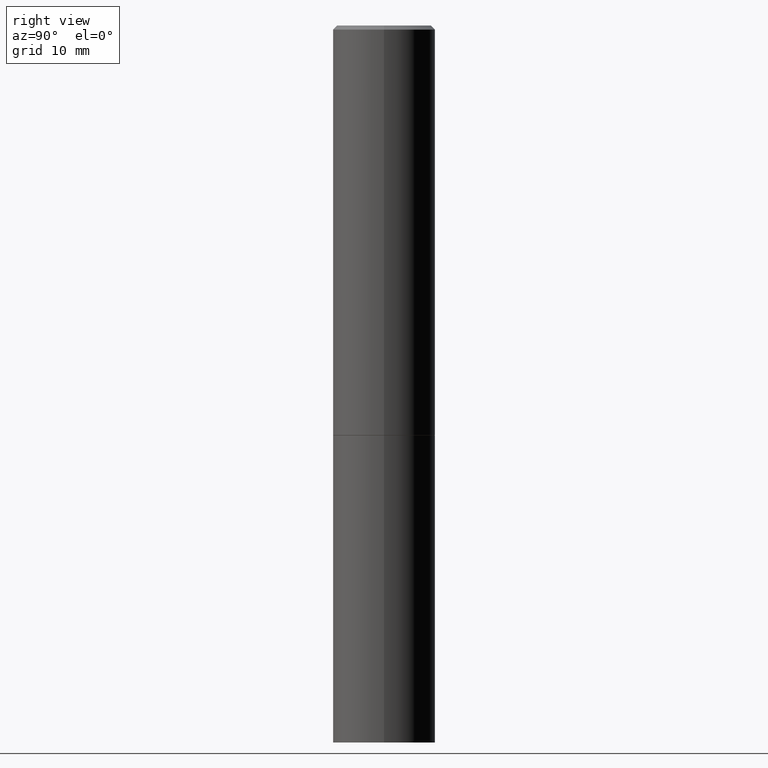
[diagram: clean part render]
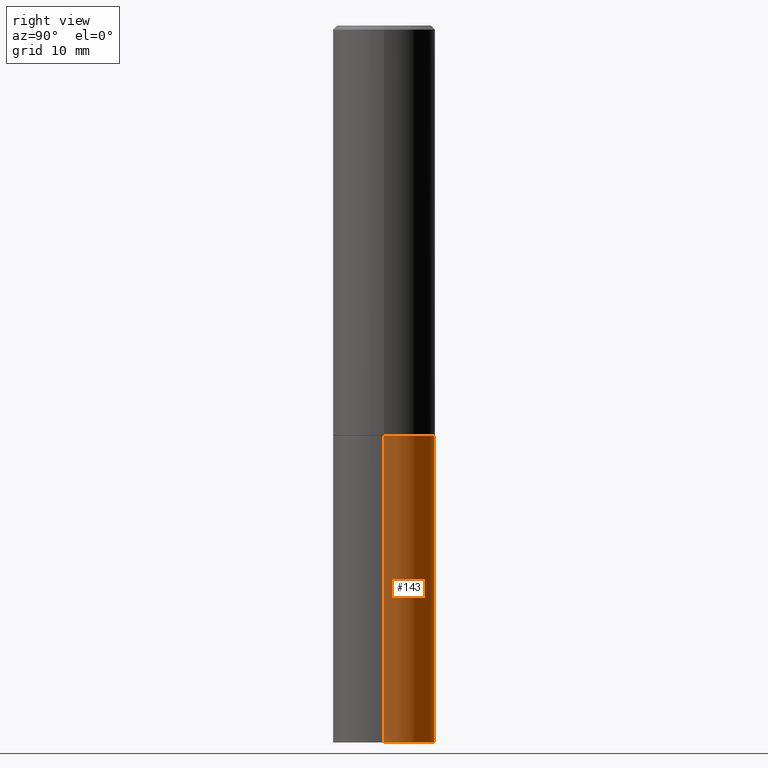
[diagram: same view with one face highlighted and labeled with its STEP entity id]
A machine part, right view. The second image highlights one B-rep face of the part: STEP entity #143.
In plain terms, the highlighted cylindrical surface (partial cylindrical patch) has radius 6.35 mm, axis along (-0, 0, 1).
Its self-contained STEP definition (entity closure, byte-faithful):
#16 = EDGE_CURVE ( 'NONE', #25, #164, #83, .T. ) ;
#25 = VERTEX_POINT ( 'NONE', #146 ) ;
#30 = CARTESIAN_POINT ( 'NONE',  ( 0.000000000000000000, 0.000000000000000000, 0.000000000000000000 ) ) ;
#32 = CARTESIAN_POINT ( 'NONE',  ( 0.2500000000000000000, -1.745740669421566678E-15, 1.219044193948983948E-29 ) ) ;
#35 = AXIS2_PLACEMENT_3D ( 'NONE', #51, #170, #132 ) ;
#44 = VERTEX_POINT ( 'NONE', #200 ) ;
#51 = CARTESIAN_POINT ( 'NONE',  ( 8.559140821647976968E-29, -1.222018468595100934E-14, -3.500000000000000000 ) ) ;
#53 = CIRCLE ( 'NONE', #35, 0.2500000000000000000 ) ;
#64 = VECTOR ( 'NONE', #311, 39.37007874015748143 ) ;
#66 = DIRECTION ( 'NONE',  ( 1.000000000000000000, -6.982962677686266711E-15, 0.000000000000000000 ) ) ;
#71 = FACE_OUTER_BOUND ( 'NONE', #77, .T. ) ;
#75 = ORIENTED_EDGE ( 'NONE', *, *, #166, .F. ) ;
#77 = EDGE_LOOP ( 'NONE', ( #277, #141, #359, #75 ) ) ;
#83 = LINE ( 'NONE', #121, #167 ) ;
#94 = DIRECTION ( 'NONE',  ( -2.445468806185136877E-29, 3.491481338843145188E-15, 1.000000000000000000 ) ) ;
#119 = LINE ( 'NONE', #32, #64 ) ;
#121 = CARTESIAN_POINT ( 'NONE',  ( -0.2500000000000000000, 1.776356839400250465E-15, -1.229733772563726445E-29 ) ) ;
#122 = AXIS2_PLACEMENT_3D ( 'NONE', #234, #239, #66 ) ;
#126 = CIRCLE ( 'NONE', #122, 0.2500000000000000000 ) ;
#132 = DIRECTION ( 'NONE',  ( 1.000000000000000000, -6.982962677686270655E-15, 0.000000000000000000 ) ) ;
#141 = ORIENTED_EDGE ( 'NONE', *, *, #16, .T. ) ;
#142 = DIRECTION ( 'NONE',  ( -2.445468806185136597E-29, 3.491481338843145583E-15, 1.000000000000000000 ) ) ;
#143 = ADVANCED_FACE ( 'NONE', ( #71 ), #188, .T. ) ;
#146 = CARTESIAN_POINT ( 'NONE',  ( -0.2500000000000000000, -7.825216842418397817E-15, -3.500000000000000000 ) ) ;
#164 = VERTEX_POINT ( 'NONE', #253 ) ;
#166 = EDGE_CURVE ( 'NONE', #297, #44, #119, .T. ) ;
#167 = VECTOR ( 'NONE', #94, 39.37007874015748143 ) ;
#170 = DIRECTION ( 'NONE',  ( -2.445468806185136597E-29, 3.491481338843145583E-15, 1.000000000000000000 ) ) ;
#188 = CYLINDRICAL_SURFACE ( 'NONE', #201, 0.2500000000000000000 ) ;
#200 = CARTESIAN_POINT ( 'NONE',  ( 0.2500000000000000000, -8.728703347107857054E-15, -1.999999999999999778 ) ) ;
#201 = AXIS2_PLACEMENT_3D ( 'NONE', #30, #142, #313 ) ;
#229 = EDGE_CURVE ( 'NONE', #44, #164, #126, .T. ) ;
#234 = CARTESIAN_POINT ( 'NONE',  ( 4.890937612370272633E-29, -6.982962677686290376E-15, -1.999999999999999778 ) ) ;
#239 = DIRECTION ( 'NONE',  ( -2.445468806185136597E-29, 3.491481338843145583E-15, 1.000000000000000000 ) ) ;
#253 = CARTESIAN_POINT ( 'NONE',  ( -0.2500000000000000000, -7.825216842418397817E-15, -1.999999999999999778 ) ) ;
#277 = ORIENTED_EDGE ( 'NONE', *, *, #292, .T. ) ;
#292 = EDGE_CURVE ( 'NONE', #297, #25, #53, .T. ) ;
#297 = VERTEX_POINT ( 'NONE', #355 ) ;
#311 = DIRECTION ( 'NONE',  ( -2.445468806185136877E-29, 3.491481338843145188E-15, 1.000000000000000000 ) ) ;
#313 = DIRECTION ( 'NONE',  ( 1.000000000000000000, -6.982962677686266711E-15, 4.876176775795935793E-29 ) ) ;
#355 = CARTESIAN_POINT ( 'NONE',  ( 0.2500000000000000000, -1.396592535537257602E-14, -3.500000000000000000 ) ) ;
#359 = ORIENTED_EDGE ( 'NONE', *, *, #229, .F. ) ;